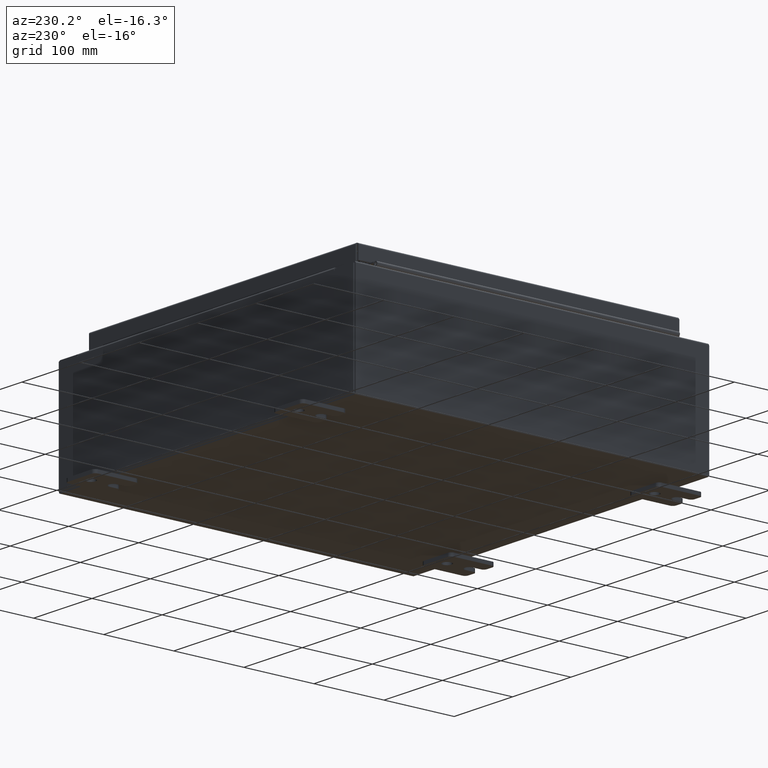
[diagram: clean part render]
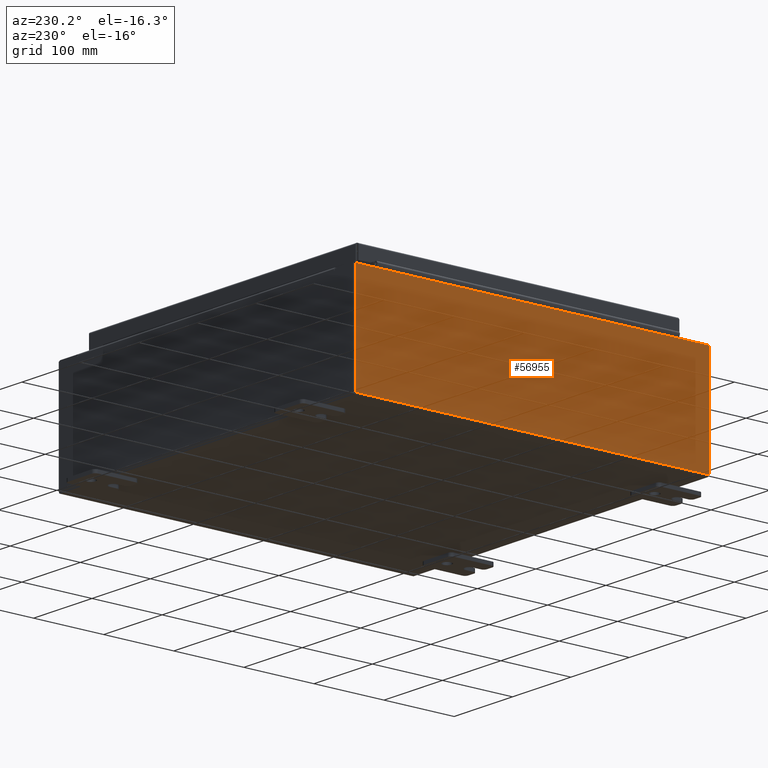
[diagram: same view with one face highlighted and labeled with its STEP entity id]
A machine part, auxiliary view. The second image highlights one B-rep face of the part: STEP entity #56955.
In plain terms, the highlighted planar face has unit normal (1, 0, 0).
Its self-contained STEP definition (entity closure, byte-faithful):
#2328 = CARTESIAN_POINT ( 'NONE',  ( -10.00000000000000000, 0.0000000000000000000, -3.345627304943080600E-014 ) ) ;
#10179 = DIRECTION ( 'NONE',  ( 3.319545939341922800E-015, 0.0000000000000000000, -1.000000000000000000 ) ) ;
#10885 = DIRECTION ( 'NONE',  ( 1.000000000000000000, 0.0000000000000000000, 3.319545939341922800E-015 ) ) ;
#11094 = DIRECTION ( 'NONE',  ( -3.319545939341922800E-015, 0.0000000000000000000, 1.000000000000000000 ) ) ;
#11603 = CARTESIAN_POINT ( 'NONE',  ( -10.00000000000002000, 9.925300000000001800, 5.837599999999999200 ) ) ;
#13419 = LINE ( 'NONE', #98677, #33483 ) ;
#15319 = AXIS2_PLACEMENT_3D ( 'NONE', #2328, #10885, #70606 ) ;
#15674 = LINE ( 'NONE', #87563, #103819 ) ;
#16507 = EDGE_CURVE ( 'NONE', #108558, #49635, #105601, .T. ) ;
#19084 = PLANE ( 'NONE',  #15319 ) ;
#21361 = CARTESIAN_POINT ( 'NONE',  ( -10.00000000000002000, -9.925299999999992900, 5.837599999999999200 ) ) ;
#27475 = ORIENTED_EDGE ( 'NONE', *, *, #73753, .F. ) ;
#30499 = LINE ( 'NONE', #70267, #101193 ) ;
#33483 = VECTOR ( 'NONE', #81857, 39.37007874015748100 ) ;
#34693 = EDGE_CURVE ( 'NONE', #79530, #108558, #15674, .T. ) ;
#38236 = VERTEX_POINT ( 'NONE', #66985 ) ;
#49635 = VERTEX_POINT ( 'NONE', #11603 ) ;
#50089 = FACE_OUTER_BOUND ( 'NONE', #88163, .T. ) ;
#54087 = EDGE_CURVE ( 'NONE', #49635, #38236, #30499, .T. ) ;
#54474 = ORIENTED_EDGE ( 'NONE', *, *, #34693, .T. ) ;
#56955 = ADVANCED_FACE ( 'NONE', ( #50089 ), #19084, .F. ) ;
#60178 = VECTOR ( 'NONE', #81755, 39.37007874015748100 ) ;
#66985 = CARTESIAN_POINT ( 'NONE',  ( -10.00000000000000000, 9.925300000000001800, 0.01299999999999985900 ) ) ;
#70267 = CARTESIAN_POINT ( 'NONE',  ( -10.00000000000000000, 9.925300000000001800, -3.345627304943080600E-014 ) ) ;
#70606 = DIRECTION ( 'NONE',  ( 3.319545939341922800E-015, 0.0000000000000000000, -1.000000000000000000 ) ) ;
#73753 = EDGE_CURVE ( 'NONE', #79530, #38236, #13419, .T. ) ;
#78079 = CARTESIAN_POINT ( 'NONE',  ( -10.00000000000000000, -9.925299999999996500, 0.01299999999999986400 ) ) ;
#78377 = ORIENTED_EDGE ( 'NONE', *, *, #16507, .T. ) ;
#79530 = VERTEX_POINT ( 'NONE', #78079 ) ;
#81755 = DIRECTION ( 'NONE',  ( 0.0000000000000000000, 1.000000000000000000, 0.0000000000000000000 ) ) ;
#81857 = DIRECTION ( 'NONE',  ( -0.0000000000000000000, 1.000000000000000000, -0.0000000000000000000 ) ) ;
#82785 = CARTESIAN_POINT ( 'NONE',  ( -10.00000000000002000, -9.925299999999992900, 5.837599999999999200 ) ) ;
#87563 = CARTESIAN_POINT ( 'NONE',  ( -10.00000000000000000, -9.925299999999998200, -3.345627304943080600E-014 ) ) ;
#88163 = EDGE_LOOP ( 'NONE', ( #78377, #95285, #27475, #54474 ) ) ;
#95285 = ORIENTED_EDGE ( 'NONE', *, *, #54087, .T. ) ;
#98677 = CARTESIAN_POINT ( 'NONE',  ( -10.00000000000000000, 9.925300000000001800, 0.01299999999999986400 ) ) ;
#101193 = VECTOR ( 'NONE', #10179, 39.37007874015748100 ) ;
#103819 = VECTOR ( 'NONE', #11094, 39.37007874015748100 ) ;
#105601 = LINE ( 'NONE', #21361, #60178 ) ;
#108558 = VERTEX_POINT ( 'NONE', #82785 ) ;